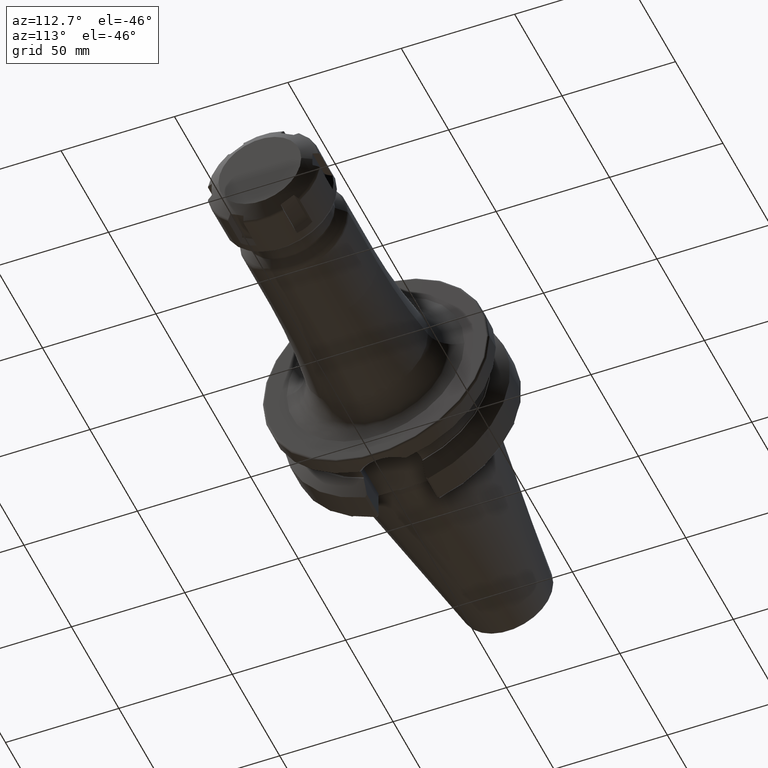
[diagram: clean part render]
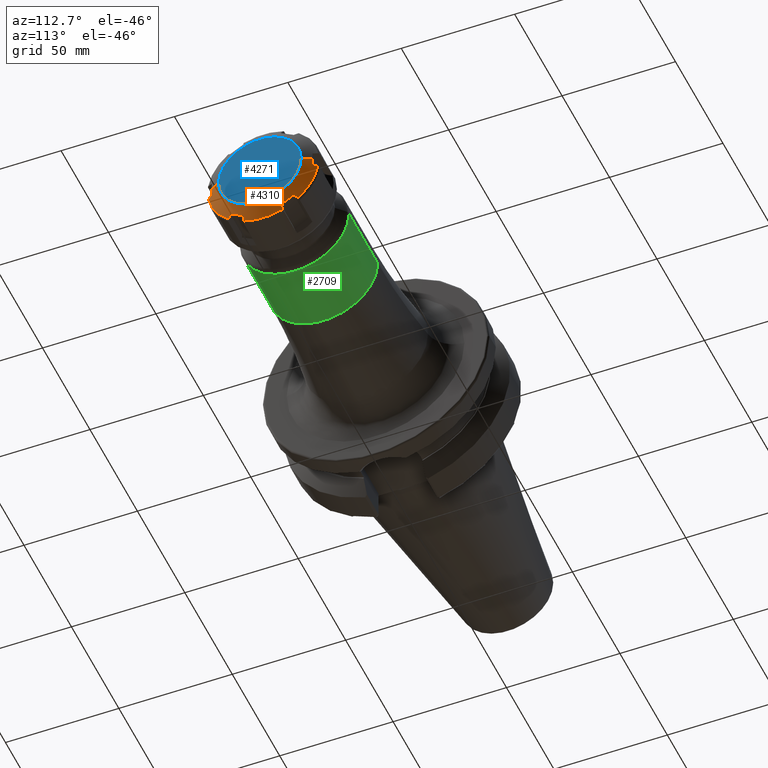
[diagram: same view with three faces highlighted in distinct colors, each labeled with its STEP entity id]
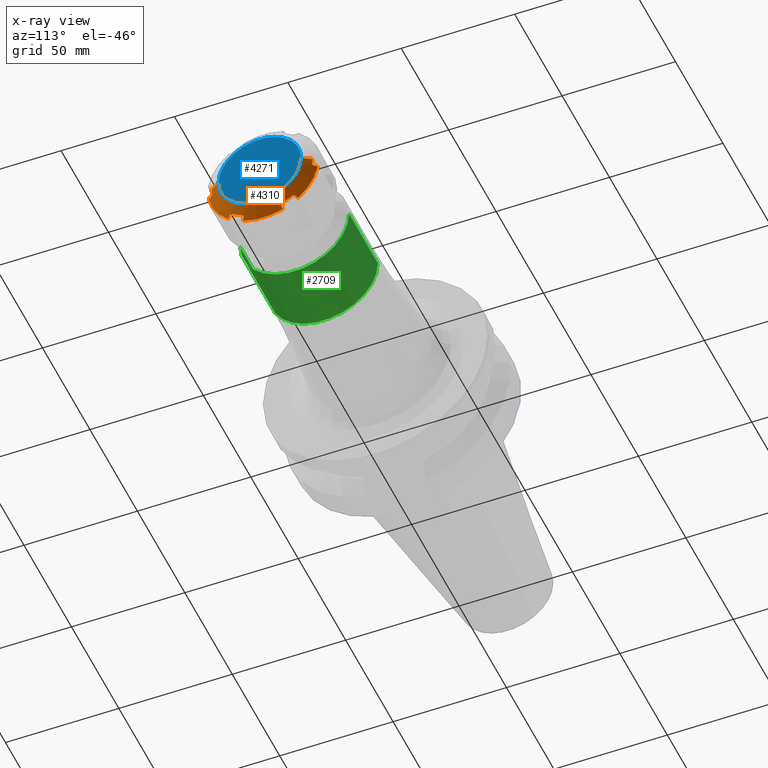
[diagram: x-ray of the same camera — body ghosted, the three highlighted faces saturated]
A machine part, auxiliary view with three faces highlighted in distinct colors.
The next image is the same camera in x-ray (body ghosted, the three faces saturated) — at least one of them is partly hidden behind the body in this view.
Their STEP definitions:

[orange] entity #4310 — the highlighted conical surface has half-angle 60 deg.
#3456=CARTESIAN_POINT('',(2.007435737753E1,1.400118510268E1,-1.755076396401E1));
#3457=CARTESIAN_POINT('',(1.989202963548E1,1.422154361045E1,-1.777895187872E1));
#3458=CARTESIAN_POINT('',(1.952459463873E1,1.466553630405E1,-1.823871977204E1));
#3459=CARTESIAN_POINT('',(1.915160861205E1,1.511608354504E1,-1.870527509788E1));
#3460=CARTESIAN_POINT('',(1.896372960121E1,1.534299650585E1,-1.894025034738E1));
#3462=CARTESIAN_POINT('',(2.007435737753E1,8.198814897322E0,-2.090076396401E1));
#3463=CARTESIAN_POINT('',(2.013850261850E1,8.843656557694E0,-2.052846445781E1));
#3464=CARTESIAN_POINT('',(2.022485531472E1,1.013317723897E1,-1.978395934535E1));
#3465=CARTESIAN_POINT('',(2.022485360844E1,1.206686210227E1,-1.866754586900E1));
#3466=CARTESIAN_POINT('',(2.013850094754E1,1.335636024026E1,-1.792305377191E1));
#3467=CARTESIAN_POINT('',(2.007435737753E1,1.400118510268E1,-1.755076396401E1));
#3469=CARTESIAN_POINT('',(1.896372960121E1,8.731239701949E0,-2.275754991793E1));
#3470=CARTESIAN_POINT('',(1.915154885340E1,8.641230285410E0,-2.244364977861E1));
#3471=CARTESIAN_POINT('',(1.952447514954E1,8.462483784300E0,-2.182028664885E1));
#3472=CARTESIAN_POINT('',(1.989196990744E1,8.286280817645E0,-2.120579387789E1));
#3473=CARTESIAN_POINT('',(2.007435737753E1,8.198814897322E0,-2.090076396401E1));
#3475=CARTESIAN_POINT('',(1.896372960121E1,0.E0,0.E0));
#3476=DIRECTION('',(-1.E0,0.E0,0.E0));
#3477=DIRECTION('',(0.E0,3.582047057210E-1,-9.336430735561E-1));
#3478=AXIS2_PLACEMENT_3D('',#3475,#3476,#3477);
#3480=CARTESIAN_POINT('',(2.007435737753E1,-8.198814897322E0,
-2.090076396401E1));
#3481=CARTESIAN_POINT('',(1.989202963548E1,-8.286252174404E0,
-2.120569398704E1));
#3482=CARTESIAN_POINT('',(1.952459463873E1,-8.462426503065E0,
-2.182008688545E1));
#3483=CARTESIAN_POINT('',(1.915160861205E1,-8.641201647020E0,
-2.244354990467E1));
#3484=CARTESIAN_POINT('',(1.896372960121E1,-8.731239701949E0,
-2.275754991793E1));
#3486=CARTESIAN_POINT('',(2.007435737753E1,-1.400118510268E1,
-1.755076396401E1));
#3487=CARTESIAN_POINT('',(2.013850261850E1,-1.335634344231E1,
-1.792306347021E1));
#3488=CARTESIAN_POINT('',(2.022485531472E1,-1.206682276103E1,
-1.866756858268E1));
#3489=CARTESIAN_POINT('',(2.022485360844E1,-1.013313789773E1,
-1.978398205903E1));
#3490=CARTESIAN_POINT('',(2.013850094754E1,-8.843639759743E0,
-2.052847415612E1));
#3491=CARTESIAN_POINT('',(2.007435737753E1,-8.198814897322E0,
-2.090076396401E1));
#3493=CARTESIAN_POINT('',(1.896372960121E1,-1.534299650585E1,
-1.894025034738E1));
#3494=CARTESIAN_POINT('',(1.915154885340E1,-1.511615571921E1,
-1.870534983642E1));
#3495=CARTESIAN_POINT('',(1.952447514954E1,-1.466568066362E1,
-1.823886926074E1));
#3496=CARTESIAN_POINT('',(1.989196990744E1,-1.422161579685E1,
-1.777902662992E1));
#3497=CARTESIAN_POINT('',(2.007435737753E1,-1.400118510268E1,
-1.755076396401E1));
#3499=CARTESIAN_POINT('',(1.896372960121E1,0.E0,0.E0));
#3500=DIRECTION('',(-1.E0,0.E0,0.E0));
#3501=DIRECTION('',(0.E0,-6.294562669065E-1,-7.770359116876E-1));
#3502=AXIS2_PLACEMENT_3D('',#3499,#3500,#3501);
#3504=CARTESIAN_POINT('',(2.007435737753E1,-2.22E1,-3.35E0));
#3505=CARTESIAN_POINT('',(1.989202963548E1,-2.250779578486E1,
-3.426742108322E0));
#3506=CARTESIAN_POINT('',(1.952459463873E1,-2.312796280711E1,
-3.581367113410E0));
#3507=CARTESIAN_POINT('',(1.915160861205E1,-2.375728519206E1,
-3.738274806794E0));
#3508=CARTESIAN_POINT('',(1.896372960121E1,-2.407423620780E1,
-3.817299570546E0));
#3510=CARTESIAN_POINT('',(2.021946643670E1,-2.22E1,-4.505137681520E-14));
#3511=CARTESIAN_POINT('',(2.021946643670E1,-2.22E1,-3.723412104007E-1));
#3512=CARTESIAN_POINT('',(2.020864224929E1,-2.22E1,-1.116942255784E0));
#3513=CARTESIAN_POINT('',(2.016008769471E1,-2.22E1,-2.233495806650E0));
#3514=CARTESIAN_POINT('',(2.010641792581E1,-2.22E1,-2.977840628173E0));
#3515=CARTESIAN_POINT('',(2.007435737753E1,-2.22E1,-3.35E0));
#3517=DIRECTION('',(-5.E-1,-8.660254037844E-1,0.E0));
#3518=VECTOR('',#3517,4.561067126598E0);
#3519=CARTESIAN_POINT('',(2.25E1,-1.825E1,0.E0));
#3520=LINE('',#3519,#3518);
#3521=CARTESIAN_POINT('',(2.25E1,0.E0,0.E0));
#3522=DIRECTION('',(-1.E0,0.E0,0.E0));
#3523=DIRECTION('',(0.E0,1.E0,0.E0));
#3524=AXIS2_PLACEMENT_3D('',#3521,#3522,#3523);
#3526=DIRECTION('',(-5.E-1,8.660254037844E-1,0.E0));
#3527=VECTOR('',#3526,4.561067126598E0);
#3528=CARTESIAN_POINT('',(2.25E1,1.825E1,0.E0));
#3529=LINE('',#3528,#3527);
#3530=CARTESIAN_POINT('',(2.007435737753E1,2.22E1,-3.35E0));
#3531=CARTESIAN_POINT('',(2.010642291935E1,2.22E1,-2.977782663007E0));
#3532=CARTESIAN_POINT('',(2.016009585532E1,2.22E1,-2.233360618265E0));
#3533=CARTESIAN_POINT('',(2.020864465134E1,2.22E1,-1.116836975823E0));
#3534=CARTESIAN_POINT('',(2.021946643670E1,2.22E1,-3.722962341462E-1));
#3535=CARTESIAN_POINT('',(2.021946643670E1,2.22E1,0.E0));
#3537=CARTESIAN_POINT('',(1.896372960121E1,2.407423620780E1,-3.817299570546E0));
#3538=CARTESIAN_POINT('',(1.915154885340E1,2.375738600462E1,-3.738299942188E0));
#3539=CARTESIAN_POINT('',(1.952447514954E1,2.312816444792E1,-3.581417388109E0));
#3540=CARTESIAN_POINT('',(1.989196990744E1,2.250789661449E1,-3.426767247974E0));
#3541=CARTESIAN_POINT('',(2.007435737753E1,2.22E1,-3.35E0));
#3543=CARTESIAN_POINT('',(1.896372960121E1,0.E0,0.E0));
#3544=DIRECTION('',(-1.E0,0.E0,0.E0));
#3545=DIRECTION('',(0.E0,9.876609726275E-1,-1.566071618686E-1));
#3546=AXIS2_PLACEMENT_3D('',#3543,#3544,#3545);
#3815=CARTESIAN_POINT('',(2.021946643670E1,-2.22E1,-4.505137681520E-14));
#3882=CARTESIAN_POINT('',(2.021946643670E1,2.22E1,0.E0));
#4152=CARTESIAN_POINT('',(2.25E1,1.825E1,0.E0));
#4153=CARTESIAN_POINT('',(2.25E1,-1.825E1,0.E0));
#4154=VERTEX_POINT('',#4152);
#4155=VERTEX_POINT('',#4153);
#4166=VERTEX_POINT('',#3882);
#4167=VERTEX_POINT('',#3530);
#4168=VERTEX_POINT('',#3537);
#4211=VERTEX_POINT('',#3815);
#4213=VERTEX_POINT('',#3504);
#4214=VERTEX_POINT('',#3508);
#4226=VERTEX_POINT('',#3480);
#4227=VERTEX_POINT('',#3484);
#4228=VERTEX_POINT('',#3486);
#4229=VERTEX_POINT('',#3493);
#4241=VERTEX_POINT('',#3456);
#4242=VERTEX_POINT('',#3460);
#4243=VERTEX_POINT('',#3462);
#4244=VERTEX_POINT('',#3469);
#4272=CARTESIAN_POINT('',(2.073186480061E1,0.E0,0.E0));
#4273=DIRECTION('',(-1.E0,0.E0,0.E0));
#4274=DIRECTION('',(0.E0,1.E0,0.E0));
#4275=AXIS2_PLACEMENT_3D('',#4272,#4273,#4274);
#4276=CONICAL_SURFACE('',#4275,2.13125E1,6.E1);
#4278=ORIENTED_EDGE('',*,*,#4277,.F.);
#4280=ORIENTED_EDGE('',*,*,#4279,.F.);
#4282=ORIENTED_EDGE('',*,*,#4281,.F.);
#4284=ORIENTED_EDGE('',*,*,#4283,.T.);
#4286=ORIENTED_EDGE('',*,*,#4285,.F.);
#4288=ORIENTED_EDGE('',*,*,#4287,.F.);
#4290=ORIENTED_EDGE('',*,*,#4289,.F.);
#4292=ORIENTED_EDGE('',*,*,#4291,.T.);
#4294=ORIENTED_EDGE('',*,*,#4293,.F.);
#4296=ORIENTED_EDGE('',*,*,#4295,.F.);
#4298=ORIENTED_EDGE('',*,*,#4297,.F.);
#4299=ORIENTED_EDGE('',*,*,#4265,.F.);
#4301=ORIENTED_EDGE('',*,*,#4300,.T.);
#4303=ORIENTED_EDGE('',*,*,#4302,.F.);
#4305=ORIENTED_EDGE('',*,*,#4304,.F.);
#4307=ORIENTED_EDGE('',*,*,#4306,.T.);
#4308=EDGE_LOOP('',(#4278,#4280,#4282,#4284,#4286,#4288,#4290,#4292,#4294,#4296,
#4298,#4299,#4301,#4303,#4305,#4307));
#4309=FACE_OUTER_BOUND('',#4308,.F.);
#4310=ADVANCED_FACE('',(#4309),#4276,.T.);
#3461=B_SPLINE_CURVE_WITH_KNOTS('',3,(#3456,#3457,#3458,#3459,#3460),
.UNSPECIFIED.,.F.,.F.,(4,1,4),(0.E0,5.E-1,1.E0),.UNSPECIFIED.);
#3468=B_SPLINE_CURVE_WITH_KNOTS('',3,(#3462,#3463,#3464,#3465,#3466,#3467),
.UNSPECIFIED.,.F.,.F.,(4,1,1,4),(0.E0,3.333333333333E-1,6.666666666667E-1,1.E0),
.UNSPECIFIED.);
#3474=B_SPLINE_CURVE_WITH_KNOTS('',3,(#3469,#3470,#3471,#3472,#3473),
.UNSPECIFIED.,.F.,.F.,(4,1,4),(0.E0,5.E-1,1.E0),.UNSPECIFIED.);
#3479=CIRCLE('',#3478,2.4375E1);
#3485=B_SPLINE_CURVE_WITH_KNOTS('',3,(#3480,#3481,#3482,#3483,#3484),
.UNSPECIFIED.,.F.,.F.,(4,1,4),(0.E0,5.E-1,1.E0),.UNSPECIFIED.);
#3492=B_SPLINE_CURVE_WITH_KNOTS('',3,(#3486,#3487,#3488,#3489,#3490,#3491),
.UNSPECIFIED.,.F.,.F.,(4,1,1,4),(0.E0,3.333333333333E-1,6.666666666667E-1,1.E0),
.UNSPECIFIED.);
#3498=B_SPLINE_CURVE_WITH_KNOTS('',3,(#3493,#3494,#3495,#3496,#3497),
.UNSPECIFIED.,.F.,.F.,(4,1,4),(0.E0,5.E-1,1.E0),.UNSPECIFIED.);
#3503=CIRCLE('',#3502,2.4375E1);
#3509=B_SPLINE_CURVE_WITH_KNOTS('',3,(#3504,#3505,#3506,#3507,#3508),
.UNSPECIFIED.,.F.,.F.,(4,1,4),(0.E0,5.E-1,1.E0),.UNSPECIFIED.);
#3516=B_SPLINE_CURVE_WITH_KNOTS('',3,(#3510,#3511,#3512,#3513,#3514,#3515),
.UNSPECIFIED.,.F.,.F.,(4,1,1,4),(0.E0,3.333333333333E-1,6.666666666667E-1,1.E0),
.UNSPECIFIED.);
#3525=CIRCLE('',#3524,1.825E1);
#3536=B_SPLINE_CURVE_WITH_KNOTS('',3,(#3530,#3531,#3532,#3533,#3534,#3535),
.UNSPECIFIED.,.F.,.F.,(4,1,1,4),(0.E0,3.333333333333E-1,6.666666666667E-1,1.E0),
.UNSPECIFIED.);
#3542=B_SPLINE_CURVE_WITH_KNOTS('',3,(#3537,#3538,#3539,#3540,#3541),
.UNSPECIFIED.,.F.,.F.,(4,1,4),(0.E0,5.E-1,1.E0),.UNSPECIFIED.);
#3547=CIRCLE('',#3546,2.4375E1);
#4265=EDGE_CURVE('',#4154,#4155,#3525,.T.);
#4277=EDGE_CURVE('',#4241,#4242,#3461,.T.);
#4279=EDGE_CURVE('',#4243,#4241,#3468,.T.);
#4281=EDGE_CURVE('',#4244,#4243,#3474,.T.);
#4283=EDGE_CURVE('',#4244,#4227,#3479,.T.);
#4285=EDGE_CURVE('',#4226,#4227,#3485,.T.);
#4287=EDGE_CURVE('',#4228,#4226,#3492,.T.);
#4289=EDGE_CURVE('',#4229,#4228,#3498,.T.);
#4291=EDGE_CURVE('',#4229,#4214,#3503,.T.);
#4293=EDGE_CURVE('',#4213,#4214,#3509,.T.);
#4295=EDGE_CURVE('',#4211,#4213,#3516,.T.);
#4297=EDGE_CURVE('',#4155,#4211,#3520,.T.);
#4300=EDGE_CURVE('',#4154,#4166,#3529,.T.);
#4302=EDGE_CURVE('',#4167,#4166,#3536,.T.);
#4304=EDGE_CURVE('',#4168,#4167,#3542,.T.);
#4306=EDGE_CURVE('',#4168,#4242,#3547,.T.);

[blue] entity #4271 — the highlighted planar face has unit normal (1, 0, 0).
#3521=CARTESIAN_POINT('',(2.25E1,0.E0,0.E0));
#3522=DIRECTION('',(-1.E0,0.E0,0.E0));
#3523=DIRECTION('',(0.E0,1.E0,0.E0));
#3524=AXIS2_PLACEMENT_3D('',#3521,#3522,#3523);
#3889=CARTESIAN_POINT('',(2.25E1,0.E0,0.E0));
#3890=DIRECTION('',(1.E0,0.E0,0.E0));
#3891=DIRECTION('',(0.E0,1.E0,0.E0));
#3892=AXIS2_PLACEMENT_3D('',#3889,#3890,#3891);
#4152=CARTESIAN_POINT('',(2.25E1,1.825E1,0.E0));
#4153=CARTESIAN_POINT('',(2.25E1,-1.825E1,0.E0));
#4154=VERTEX_POINT('',#4152);
#4155=VERTEX_POINT('',#4153);
#4260=CARTESIAN_POINT('',(2.25E1,0.E0,0.E0));
#4261=DIRECTION('',(1.E0,0.E0,0.E0));
#4262=DIRECTION('',(0.E0,-1.E0,0.E0));
#4263=AXIS2_PLACEMENT_3D('',#4260,#4261,#4262);
#4264=PLANE('',#4263);
#4266=ORIENTED_EDGE('',*,*,#4265,.T.);
#4268=ORIENTED_EDGE('',*,*,#4267,.F.);
#4269=EDGE_LOOP('',(#4266,#4268));
#4270=FACE_OUTER_BOUND('',#4269,.F.);
#4271=ADVANCED_FACE('',(#4270),#4264,.T.);
#3525=CIRCLE('',#3524,1.825E1);
#3893=CIRCLE('',#3892,1.825E1);
#4265=EDGE_CURVE('',#4154,#4155,#3525,.T.);
#4267=EDGE_CURVE('',#4154,#4155,#3893,.T.);

[green] entity #2709 — the highlighted cylindrical surface (partial cylindrical patch) has radius 24 mm, axis along (1, 0, 0).
#874=CARTESIAN_POINT('',(9.3E1,0.E0,0.E0));
#875=DIRECTION('',(1.E0,0.E0,0.E0));
#876=DIRECTION('',(0.E0,-1.E0,0.E0));
#877=AXIS2_PLACEMENT_3D('',#874,#875,#876);
#879=DIRECTION('',(-1.E0,0.E0,-5.987120143222E-14));
#880=VECTOR('',#879,3.035735931288E1);
#881=CARTESIAN_POINT('',(1.233573593129E2,-2.4E1,1.813620903687E-12));
#882=LINE('',#881,#880);
#883=CARTESIAN_POINT('',(1.233573593129E2,0.E0,0.E0));
#884=DIRECTION('',(-1.E0,0.E0,0.E0));
#885=DIRECTION('',(0.E0,1.E0,0.E0));
#886=AXIS2_PLACEMENT_3D('',#883,#884,#885);
#888=DIRECTION('',(-1.E0,0.E0,5.986340331366E-14));
#889=VECTOR('',#888,3.035735931288E1);
#890=CARTESIAN_POINT('',(1.233573593129E2,2.4E1,-1.814355691767E-12));
#891=LINE('',#890,#889);
#1491=CARTESIAN_POINT('',(1.233573593129E2,2.4E1,0.E0));
#1492=CARTESIAN_POINT('',(1.233573593129E2,-2.4E1,0.E0));
#1493=VERTEX_POINT('',#1491);
#1494=VERTEX_POINT('',#1492);
#1499=CARTESIAN_POINT('',(9.3E1,2.4E1,0.E0));
#1500=CARTESIAN_POINT('',(9.3E1,-2.4E1,0.E0));
#1501=VERTEX_POINT('',#1499);
#1502=VERTEX_POINT('',#1500);
#2695=CARTESIAN_POINT('',(3.2545E1,0.E0,0.E0));
#2696=DIRECTION('',(1.E0,0.E0,0.E0));
#2697=DIRECTION('',(0.E0,-1.E0,0.E0));
#2698=AXIS2_PLACEMENT_3D('',#2695,#2696,#2697);
#2699=CYLINDRICAL_SURFACE('',#2698,2.4E1);
#2700=ORIENTED_EDGE('',*,*,#2689,.F.);
#2702=ORIENTED_EDGE('',*,*,#2701,.F.);
#2704=ORIENTED_EDGE('',*,*,#2703,.F.);
#2706=ORIENTED_EDGE('',*,*,#2705,.T.);
#2707=EDGE_LOOP('',(#2700,#2702,#2704,#2706));
#2708=FACE_OUTER_BOUND('',#2707,.F.);
#2709=ADVANCED_FACE('',(#2708),#2699,.T.);
#878=CIRCLE('',#877,2.4E1);
#887=CIRCLE('',#886,2.4E1);
#2689=EDGE_CURVE('',#1502,#1501,#878,.T.);
#2701=EDGE_CURVE('',#1494,#1502,#882,.T.);
#2703=EDGE_CURVE('',#1493,#1494,#887,.T.);
#2705=EDGE_CURVE('',#1493,#1501,#891,.T.);